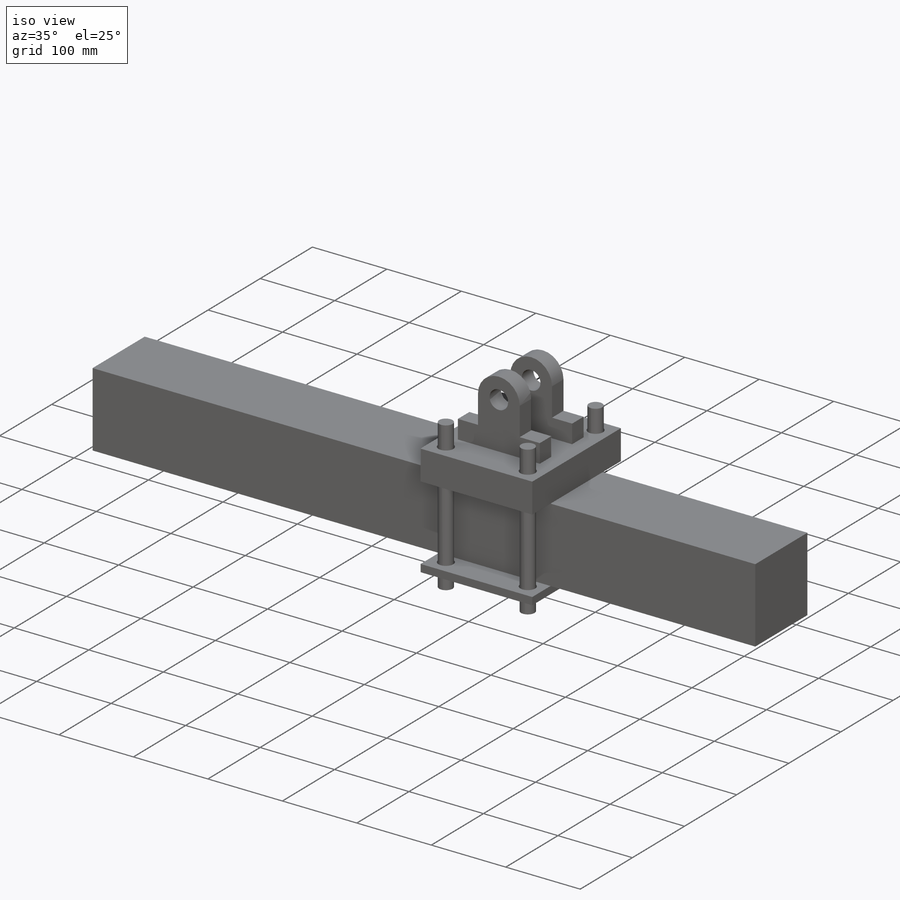
[diagram: iso view]
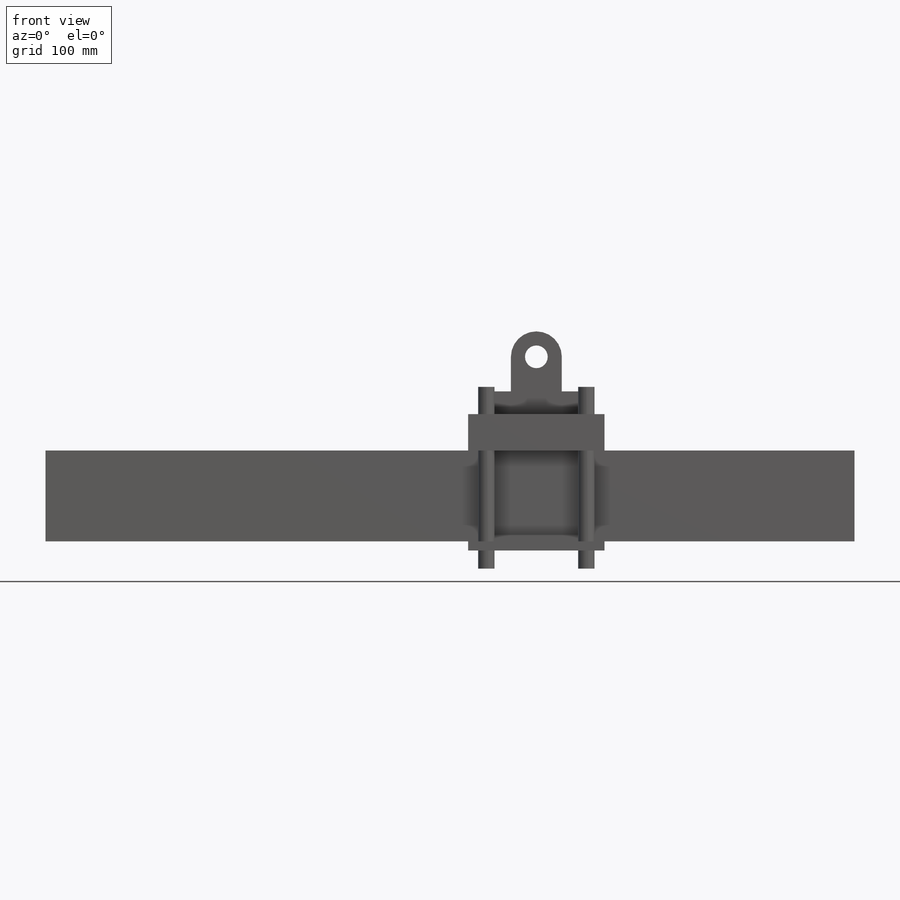
[diagram: front view]
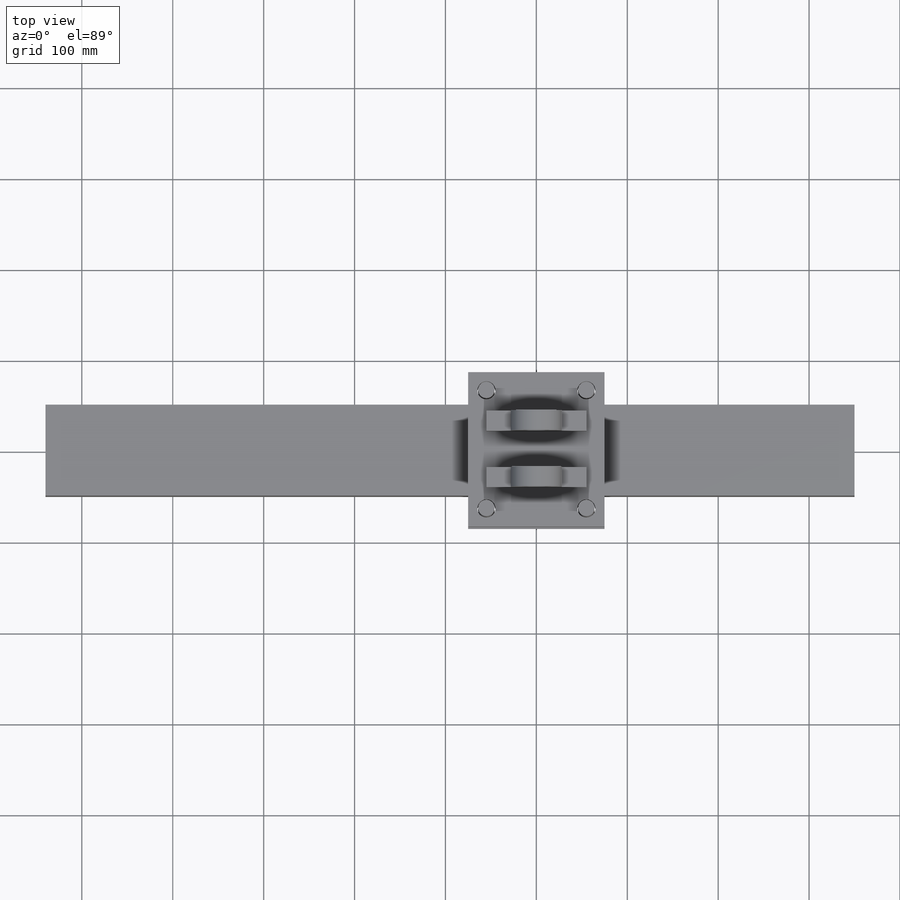
[diagram: top view]
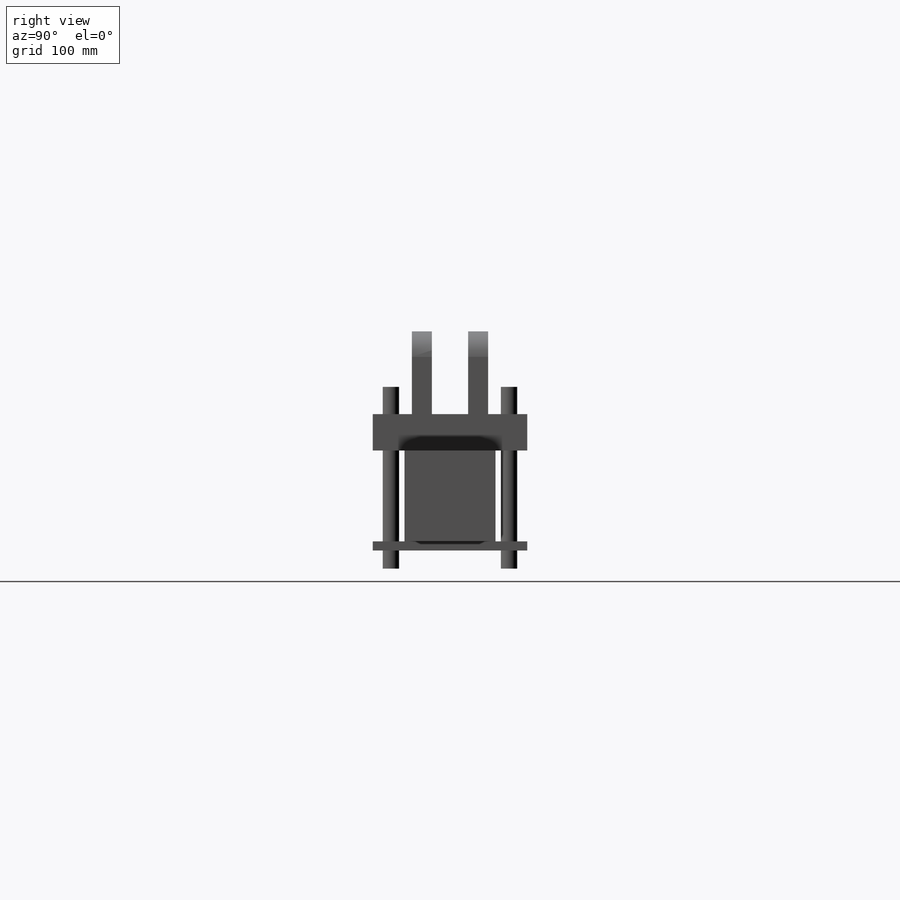
[diagram: right view]
SOLIDWORKS PART (.sldprt)
format: sldprt  version: not decoded by parser v0  size: 399,360 bytes
history: native  units: mm
features: sketch x12, extrude x10, plane x3, cut_extrude x3, mirror x2, material x1 (+12 scaffold rows collapsed)
feature tree (43):
  scaffold x12  (default folders/planes/origin — collapsed)
  material  "Plain Carbon Steel"
  plane  "Plane1"  Offset=20mm
  sketch  "Sketch2"  dims[D1=850.0mm D2=100.0mm]
  extrude  "Boss-Extrude1"  Depth=100mm
  sketch  "Sketch7"  dims[D1=5.0mm]
  cut_extrude  "Cut-Extrude2"  Depth=90mm
  sketch  "Sketch8"  dims[D1=150.0mm D2=10.0mm D3=10.0mm D4=120.0mm]
  extrude  "Boss-Extrude6"  Depth=170mm
  sketch  "Sketch11"  dims[D1=150.0mm D2=10.0mm D3=10.0mm D4=100.0mm]
  sketch  "Sketch12"  dims[D1=150.0mm D2=40.0mm D3=10.0mm D4=500.0mm]
  extrude  "Boss-Extrude8"  Depth=170mm
  extrude  "Boss-Extrude9"  Depth=170mm
  sketch  "Sketch9"  dims[D1=20.0mm D2=20.0mm D3=20.0mm D4=20.0mm D5=20.0mm]
  cut_extrude  "Cut-Extrude3 (pos 1&2)"  Depth=160mm
  sketch  "Sketch10"  dims[D1=18.0mm D2=18.0mm]
  extrude  "Boss-Extrude7 (pos 1&2)"  Depth=120mm
  sketch  "Sketch3"  dims[c1.D3=28.0mm c1.D4=25.0mm c1.D1=25.0mm c1.D2=110.0mm c1.D5=38.0mm c1.D6=~35.716803mm c2.D1=100.0mm c2.D2=350.0mm c2.D3=500.0mm c2.D4=40.0mm]
  extrude  "Boss-Extrude2 (pos 1&2)"  Depth=22mm
  plane  "Plane2"  Offset=173mm
  sketch  "Sketch5"
  extrude  "Boss-Extrude4"  Depth=40mm
  mirror  "Mirror1"
  sketch  "Sketch13"  dims[c1.D1=20.0mm c1.D2=20.0mm c1.D3=20.0mm c1.D4=20.0mm c1.D5=20.0mm c2.D3=20.0mm c2.D4=20.0mm c2.D5=20.0mm c2.D6=20.0mm]
  cut_extrude  "Cut-Extrude3"  [1 undecoded]
  sketch  "Sketch14"  dims[D1=18.0mm D2=18.0mm]
  extrude  "Boss-Extrude10"  Depth=170mm
  sketch  "Sketch15"
  extrude  "Mounting_block-1"  [1 undecoded]
  extrude  "Boss-Extrude11"  Depth=22mm
  mirror  "Mirror2"
  plane  "Plane3"  Offset=213mm
decode coverage: 21 of 27 modeling features carry decoded parameters
note: ~ marks probable driven/reference dimensions
note: 2 parameter values undecoded
note: suppression state not decoded; provenance and decode notes live in map.json
